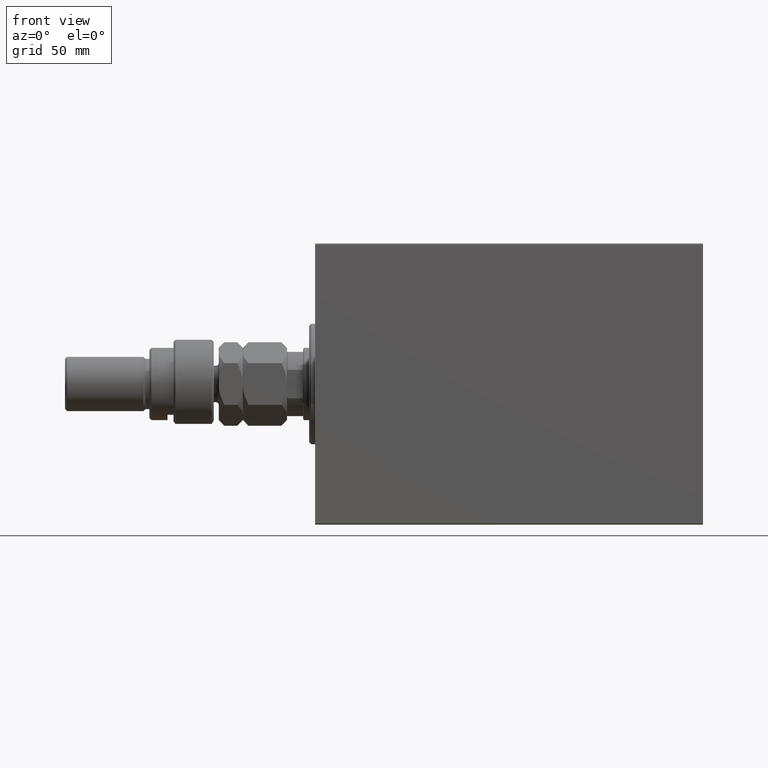
[diagram: clean part render]
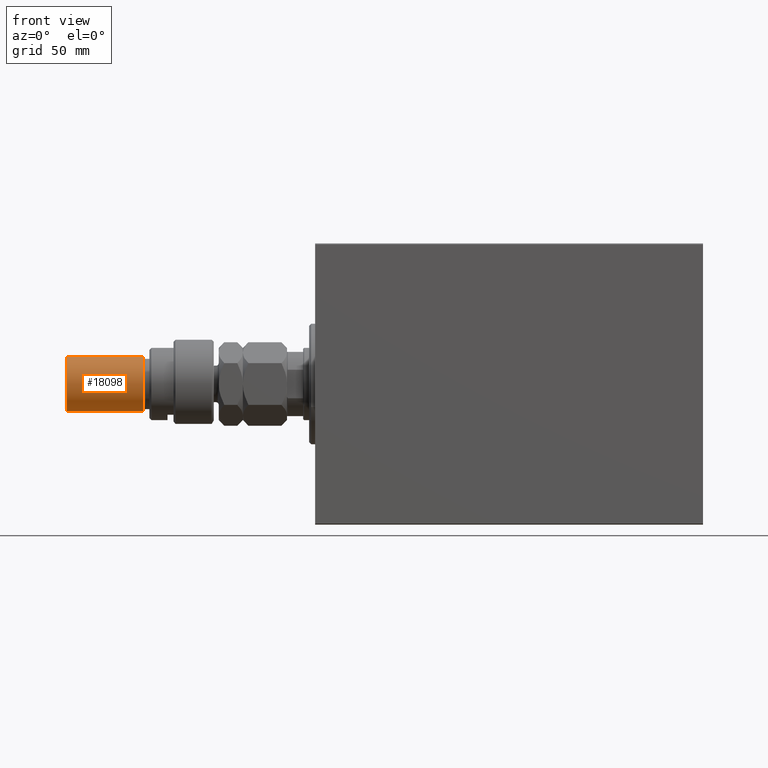
[diagram: same view with one face highlighted and labeled with its STEP entity id]
A machine part, front view. The second image highlights one B-rep face of the part: STEP entity #18098.
In plain terms, the highlighted cylindrical surface (edge-blend (fillet) strip) has radius 13.5 mm, axis along (1, -0, -0).
Its self-contained STEP definition (entity closure, byte-faithful):
#1367 = DIRECTION ( 'NONE',  ( 1.000000000000000000, 0.000000000000000000, 0.000000000000000000 ) ) ;
#1579 = CYLINDRICAL_SURFACE ( 'NONE', #19378, 13.50000000000000000 ) ;
#1811 = DIRECTION ( 'NONE',  ( -1.000000000000000000, 0.000000000000000000, 0.000000000000000000 ) ) ;
#2313 = VECTOR ( 'NONE', #31314, 1000.000000000000000 ) ;
#2442 = CIRCLE ( 'NONE', #4720, 13.50000000000000000 ) ;
#2602 = CARTESIAN_POINT ( 'NONE',  ( 13.50000000000000000, 1.653273178848926867E-15, 73.00000000000001421 ) ) ;
#4273 = VERTEX_POINT ( 'NONE', #31492 ) ;
#4720 = AXIS2_PLACEMENT_3D ( 'NONE', #16242, #12495, #5635 ) ;
#5635 = DIRECTION ( 'NONE',  ( 1.000000000000000000, 0.000000000000000000, 0.000000000000000000 ) ) ;
#7568 = AXIS2_PLACEMENT_3D ( 'NONE', #22815, #37237, #1367 ) ;
#8882 = CARTESIAN_POINT ( 'NONE',  ( -13.50000000000000000, 0.000000000000000000, 74.00000000000001421 ) ) ;
#10023 = ORIENTED_EDGE ( 'NONE', *, *, #31048, .T. ) ;
#11081 = ORIENTED_EDGE ( 'NONE', *, *, #27832, .F. ) ;
#12495 = DIRECTION ( 'NONE',  ( -0.000000000000000000, -0.000000000000000000, 1.000000000000000000 ) ) ;
#14611 = VERTEX_POINT ( 'NONE', #38811 ) ;
#15123 = VERTEX_POINT ( 'NONE', #43879 ) ;
#15406 = ORIENTED_EDGE ( 'NONE', *, *, #40707, .T. ) ;
#16242 = CARTESIAN_POINT ( 'NONE',  ( 0.000000000000000000, 0.000000000000000000, 34.99999999999999289 ) ) ;
#16833 = VERTEX_POINT ( 'NONE', #2602 ) ;
#17118 = EDGE_CURVE ( 'NONE', #15123, #4273, #41223, .T. ) ;
#18098 = ADVANCED_FACE ( 'NONE', ( #27033 ), #1579, .T. ) ;
#19028 = DIRECTION ( 'NONE',  ( -0.000000000000000000, -0.000000000000000000, -1.000000000000000000 ) ) ;
#19378 = AXIS2_PLACEMENT_3D ( 'NONE', #37682, #19028, #1811 ) ;
#22815 = CARTESIAN_POINT ( 'NONE',  ( 0.000000000000000000, 0.000000000000000000, 73.00000000000001421 ) ) ;
#23243 = DIRECTION ( 'NONE',  ( -0.000000000000000000, -0.000000000000000000, -1.000000000000000000 ) ) ;
#23772 = LINE ( 'NONE', #24463, #2313 ) ;
#24463 = CARTESIAN_POINT ( 'NONE',  ( 13.50000000000000000, 1.653273178848926867E-15, 74.00000000000001421 ) ) ;
#26881 = VECTOR ( 'NONE', #23243, 1000.000000000000000 ) ;
#27033 = FACE_OUTER_BOUND ( 'NONE', #46421, .T. ) ;
#27832 = EDGE_CURVE ( 'NONE', #16833, #14611, #23772, .T. ) ;
#31048 = EDGE_CURVE ( 'NONE', #16833, #15123, #43758, .T. ) ;
#31314 = DIRECTION ( 'NONE',  ( -0.000000000000000000, -0.000000000000000000, -1.000000000000000000 ) ) ;
#31492 = CARTESIAN_POINT ( 'NONE',  ( -13.50000000000000000, 0.000000000000000000, 34.99999999999999289 ) ) ;
#37237 = DIRECTION ( 'NONE',  ( 0.000000000000000000, 0.000000000000000000, -1.000000000000000000 ) ) ;
#37682 = CARTESIAN_POINT ( 'NONE',  ( 0.000000000000000000, 0.000000000000000000, 74.00000000000001421 ) ) ;
#38811 = CARTESIAN_POINT ( 'NONE',  ( 13.50000000000000000, 1.653273178848926867E-15, 34.99999999999999289 ) ) ;
#40707 = EDGE_CURVE ( 'NONE', #4273, #14611, #2442, .T. ) ;
#41223 = LINE ( 'NONE', #8882, #26881 ) ;
#43758 = CIRCLE ( 'NONE', #7568, 13.50000000000000000 ) ;
#43879 = CARTESIAN_POINT ( 'NONE',  ( -13.50000000000000000, 0.000000000000000000, 73.00000000000001421 ) ) ;
#46421 = EDGE_LOOP ( 'NONE', ( #11081, #10023, #46664, #15406 ) ) ;
#46664 = ORIENTED_EDGE ( 'NONE', *, *, #17118, .T. ) ;